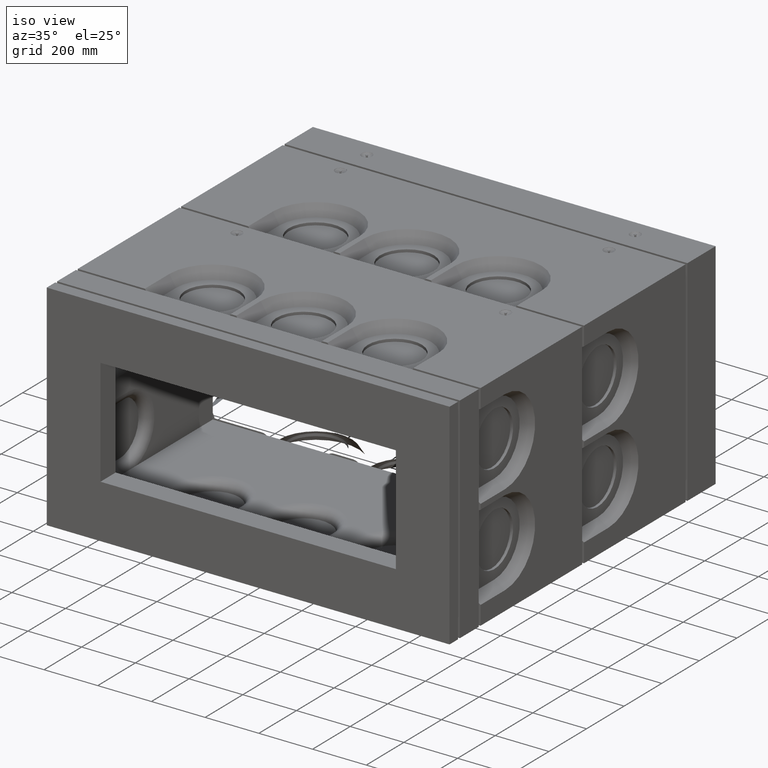
[diagram: clean part render]
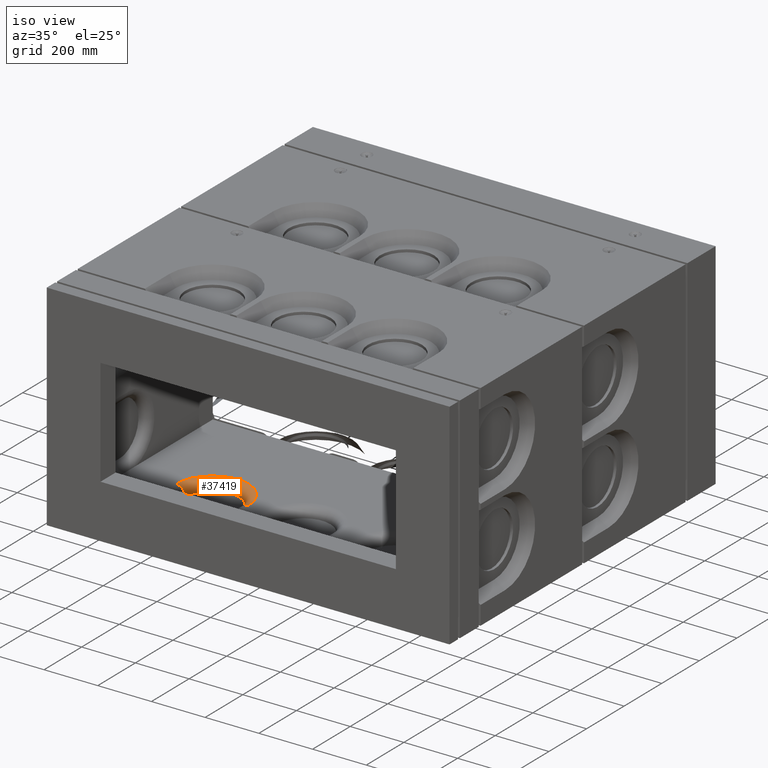
[diagram: same view with one face highlighted and labeled with its STEP entity id]
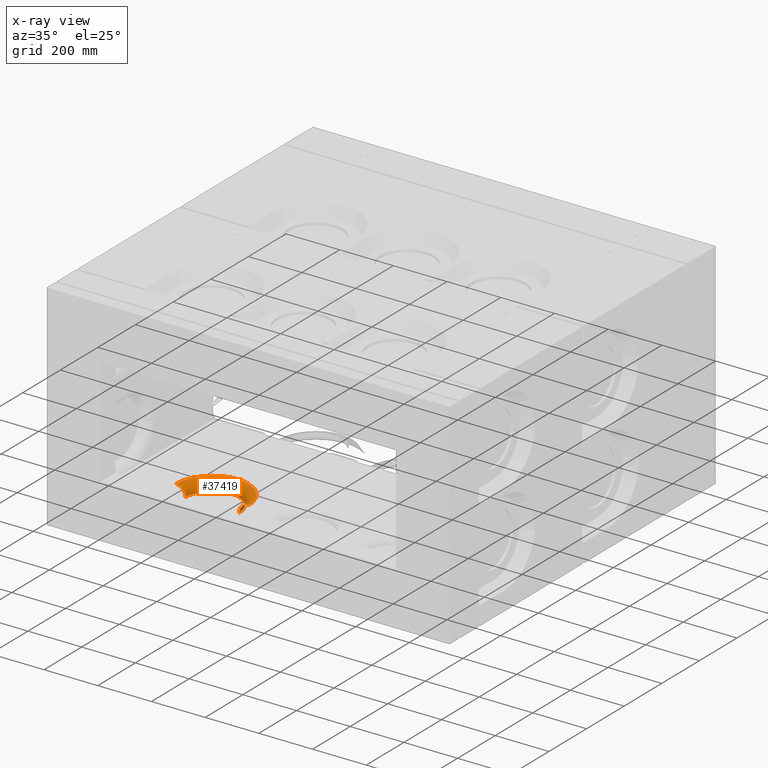
[diagram: x-ray of the same camera — body ghosted, the highlighted face saturated]
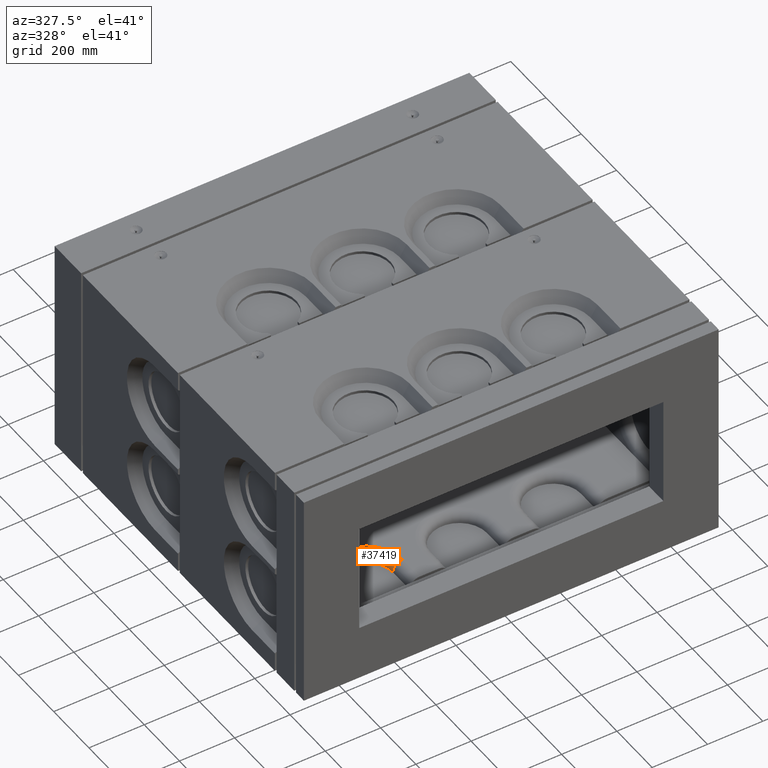
[diagram: same view with one face highlighted and labeled with its STEP entity id]
A machine part, iso view. The second image highlights one B-rep face of the part: STEP entity #37419.
The next image is the same camera in x-ray: the body ghosted, the highlighted face saturated — about 1% of this face is hidden behind the body in this view.
A second angle (auxiliary view) of the same face is appended — the face is thin or edge-on in the first view.
In plain terms, the highlighted toroidal blend (fillet) surface has major radius 135 mm and minor (blend) radius 35 mm.
Its self-contained STEP definition (entity closure, byte-faithful):
#261 = DIRECTION ( 'NONE',  ( 1.000000000000000000, 0.0000000000000000000, 0.0000000000000000000 ) ) ;
#2329 = AXIS2_PLACEMENT_3D ( 'NONE', #18429, #18811, #21916 ) ;
#3291 = CARTESIAN_POINT ( 'NONE',  ( -439.9999999999997158, 294.9999999999994316, -334.9999999999998863 ) ) ;
#4733 = ORIENTED_EDGE ( 'NONE', *, *, #16356, .F. ) ;
#5129 = FACE_OUTER_BOUND ( 'NONE', #25900, .T. ) ;
#6863 = DIRECTION ( 'NONE',  ( 1.000000000000000000, 0.0000000000000000000, 0.0000000000000000000 ) ) ;
#7017 = ORIENTED_EDGE ( 'NONE', *, *, #14185, .T. ) ;
#8997 = EDGE_CURVE ( 'NONE', #36583, #19221, #29103, .T. ) ;
#9124 = DIRECTION ( 'NONE',  ( -9.020795863254529851E-32, -1.000000000000000000, -4.996003610813209362E-16 ) ) ;
#12086 = CARTESIAN_POINT ( 'NONE',  ( -239.9999999999997158, 294.9999999999994316, -334.9999999999998863 ) ) ;
#12429 = DIRECTION ( 'NONE',  ( 9.020795863254529851E-32, 1.000000000000000000, 4.996003610813209362E-16 ) ) ;
#14136 = CIRCLE ( 'NONE', #38063, 35.00000000000000000 ) ;
#14185 = EDGE_CURVE ( 'NONE', #36583, #27744, #16078, .T. ) ;
#15869 = DIRECTION ( 'NONE',  ( -1.000000000000000000, 0.0000000000000000000, 0.0000000000000000000 ) ) ;
#16078 = CIRCLE ( 'NONE', #31032, 35.00000000000002842 ) ;
#16356 = EDGE_CURVE ( 'NONE', #27926, #27744, #35526, .T. ) ;
#16728 = CARTESIAN_POINT ( 'NONE',  ( -339.9999999999997726, 294.9999999999994316, -334.9999999999998863 ) ) ;
#17579 = CARTESIAN_POINT ( 'NONE',  ( -474.9999999999997726, 294.9999999999993747, -299.9999999999999432 ) ) ;
#18429 = CARTESIAN_POINT ( 'NONE',  ( -339.9999999999997726, 294.9999999999993747, -299.9999999999999432 ) ) ;
#18713 = CARTESIAN_POINT ( 'NONE',  ( -474.9999999999997726, 294.9999999999994316, -334.9999999999998863 ) ) ;
#18811 = DIRECTION ( 'NONE',  ( -8.095376221225034036E-18, 4.996003610813208376E-16, -1.000000000000000000 ) ) ;
#19221 = VERTEX_POINT ( 'NONE', #37620 ) ;
#21916 = DIRECTION ( 'NONE',  ( 1.000000000000000000, 0.0000000000000000000, 0.0000000000000000000 ) ) ;
#24800 = AXIS2_PLACEMENT_3D ( 'NONE', #16728, #33919, #31208 ) ;
#25900 = EDGE_LOOP ( 'NONE', ( #7017, #4733, #34322, #28515 ) ) ;
#26794 = CARTESIAN_POINT ( 'NONE',  ( -204.9999999999997442, 294.9999999999994316, -334.9999999999999432 ) ) ;
#26851 = TOROIDAL_SURFACE ( 'NONE', #24800, 134.9999999999999716, 35.00000000000000000 ) ;
#27035 = DIRECTION ( 'NONE',  ( 8.095376221225034036E-18, -4.996003610813208376E-16, 1.000000000000000000 ) ) ;
#27290 = CARTESIAN_POINT ( 'NONE',  ( -339.9999999999997726, 294.9999999999994316, -334.9999999999998863 ) ) ;
#27744 = VERTEX_POINT ( 'NONE', #3291 ) ;
#27926 = VERTEX_POINT ( 'NONE', #12086 ) ;
#28515 = ORIENTED_EDGE ( 'NONE', *, *, #8997, .F. ) ;
#29038 = EDGE_CURVE ( 'NONE', #19221, #27926, #14136, .T. ) ;
#29103 = CIRCLE ( 'NONE', #2329, 135.0000000000000000 ) ;
#31032 = AXIS2_PLACEMENT_3D ( 'NONE', #18713, #12429, #15869 ) ;
#31208 = DIRECTION ( 'NONE',  ( 1.000000000000000000, 4.044452883213165185E-33, -8.095376221225034036E-18 ) ) ;
#33792 = AXIS2_PLACEMENT_3D ( 'NONE', #27290, #27035, #6863 ) ;
#33919 = DIRECTION ( 'NONE',  ( 8.095376221225034036E-18, -4.996003610813208376E-16, 1.000000000000000000 ) ) ;
#34322 = ORIENTED_EDGE ( 'NONE', *, *, #29038, .F. ) ;
#35526 = CIRCLE ( 'NONE', #33792, 100.0000000000000000 ) ;
#36583 = VERTEX_POINT ( 'NONE', #17579 ) ;
#37419 = ADVANCED_FACE ( 'NONE', ( #5129 ), #26851, .T. ) ;
#37620 = CARTESIAN_POINT ( 'NONE',  ( -204.9999999999997442, 294.9999999999993747, -299.9999999999999432 ) ) ;
#38063 = AXIS2_PLACEMENT_3D ( 'NONE', #26794, #9124, #261 ) ;